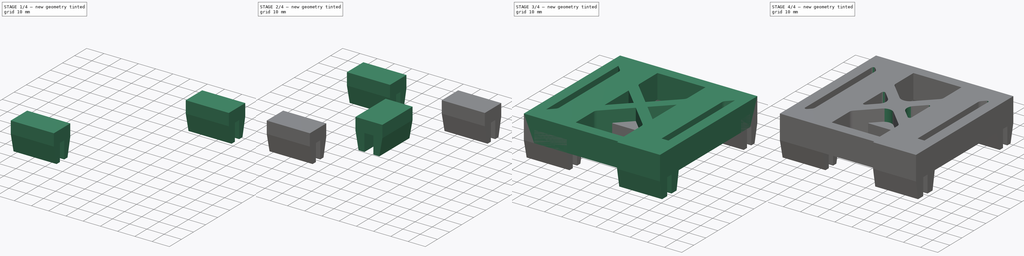
[diagram: build sequence overview — one tinted view per stage of 4, left to right]
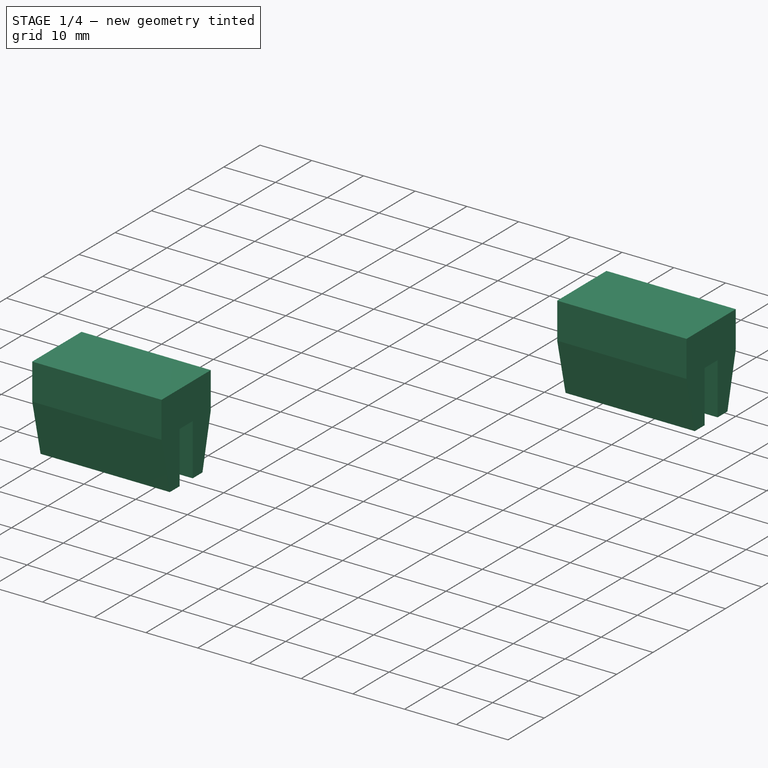
[diagram: stage 1 of 4 — iso view after this stage's code; geometry added in this stage tinted green]
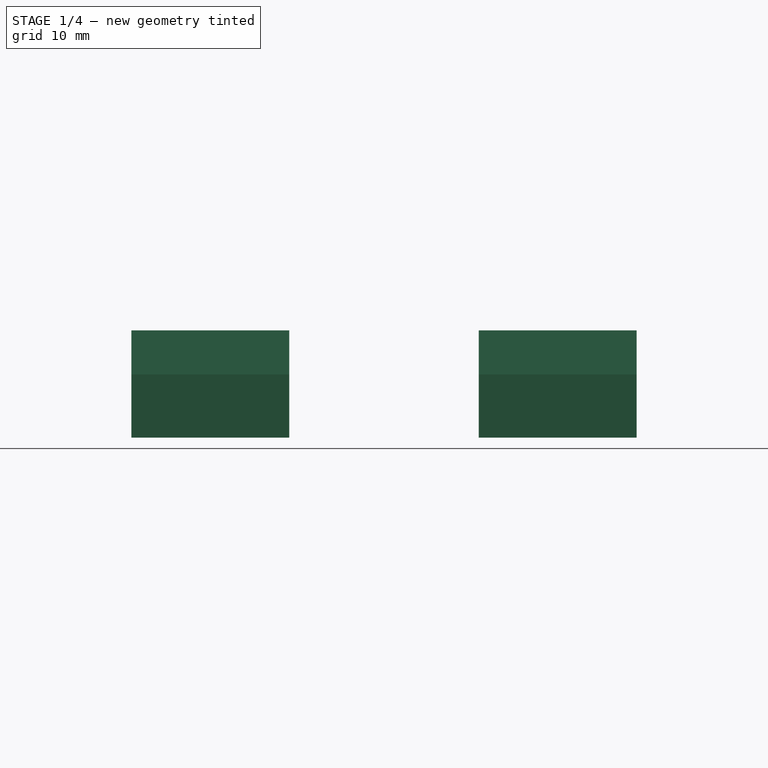
[diagram: stage 1 of 4 — front view after this stage's code; geometry added in this stage tinted green]
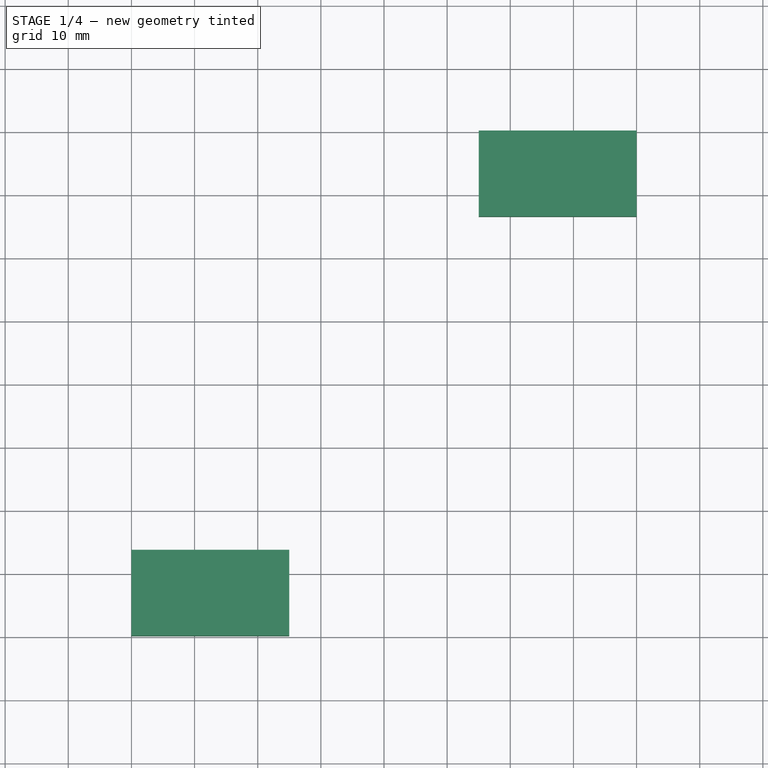
[diagram: stage 1 of 4 — top view after this stage's code; geometry added in this stage tinted green]
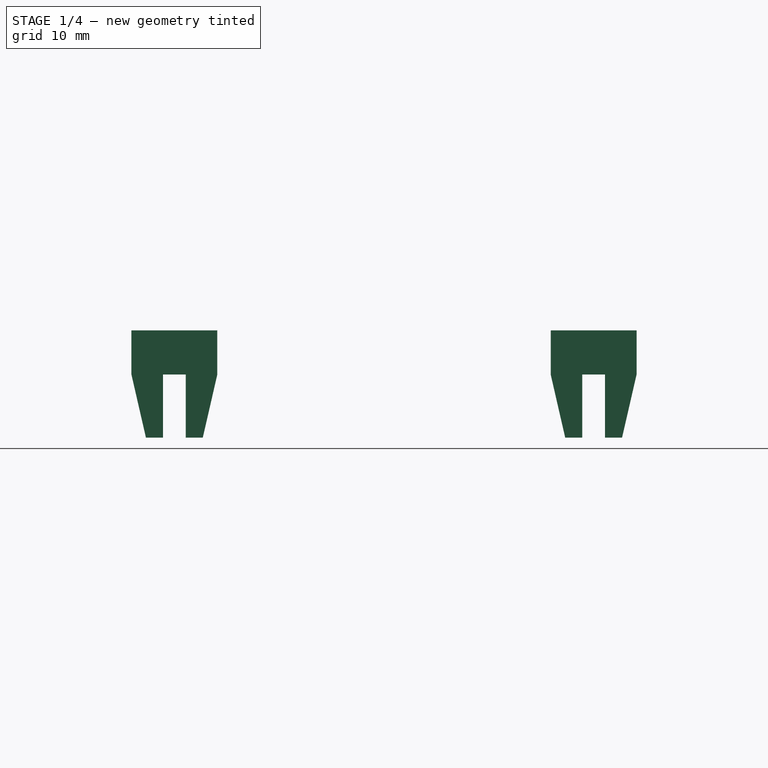
[diagram: stage 1 of 4 — right view after this stage's code; geometry added in this stage tinted green]
FCSTD DOCUMENT  (FreeCAD 0.20R0.20)
Label: 019
License: All rights reserved
LicenseURL: http://en.wikipedia.org/wiki/All_rights_reserved
objects: Sketcher::SketchObject×6, Part::Extrusion×6, Part::Fillet×3
note: 15 computed .brp shape members not serialized (recipe doc carries the construction recipe); baked Part::Feature solids carry a one-line shape summary decoded from their .brp

FEATURE [Sketcher::SketchObject] Sketch006
  FullyConstrained = true
  Placement = pos=(0,0,0) rot=(1,0,0;1.5708rad)
  sketch-geometry (10):
    g0: LineSegment StartX=5 StartY=-14 StartZ=0 EndX=8.6 EndY=-14 EndZ=0
    g1: LineSegment StartX=5 StartY=-14 StartZ=0 EndX=5 EndY=-24 EndZ=0
    g2: LineSegment StartX=5 StartY=-24 StartZ=0 EndX=2.3 EndY=-24 EndZ=0
    g3: LineSegment StartX=0 StartY=-14 StartZ=0 EndX=2.3 EndY=-24 EndZ=0
    g4: LineSegment StartX=8.6 StartY=-14 StartZ=0 EndX=8.6 EndY=-24 EndZ=0
    g5: LineSegment StartX=8.6 StartY=-24 StartZ=0 EndX=11.3 EndY=-24 EndZ=0
    g6: LineSegment StartX=13.6 StartY=-14 StartZ=0 EndX=11.3 EndY=-24 EndZ=0
    g7: LineSegment StartX=0 StartY=-14 StartZ=0 EndX=0 EndY=-7 EndZ=0
    g8: LineSegment StartX=0 StartY=-7 StartZ=0 EndX=13.6 EndY=-7 EndZ=0
    g9: LineSegment StartX=13.6 StartY=-7 StartZ=0 EndX=13.6 EndY=-14 EndZ=0
  constraints (28):
    c: Horizontal(g0)
    c: Block(g0)
    c: Distance(g0) = 3.6
    c: Coincident(g1,g0)
    c: Vertical(g1)
    c: Distance(g1) = 10
    c: Coincident(g2,g1)
    c: Horizontal(g2)
    c: Distance(g2) = 2.7
    c: Coincident(g3,g2)
    c: Coincident(g4,g0)
    c: Vertical(g4)
    c: Distance(g4) = 10
    c: Coincident(g5,g4)
    c: Horizontal(g5)
    c: Distance(g5) = 2.7
    c: Coincident(g6,g5)
    c: Block(g3)
    c: Coincident(g7,g3)
    c: Vertical(g7)
    c: Distance(g7) = 7
    c: Coincident(g8,g7)
    c: Horizontal(g8)
    c: Distance(g8) = 13.6
    c: Block(g6)
    c: Coincident(g9,g8)
    c: Coincident(g9,g6)
    c: Vertical(g9)
FEATURE [Part::Extrusion] Extrude006  label="hullBrace005"
  Base = -> Sketch006
  Dir = (0,-1,2e-16)
  DirMode = 2
  FaceMakerClass = Part::FaceMakerBullseye
  LengthFwd = 25
  LengthRev = 0
  Placement = pos=(55,66.4,14) rot=(0,0,1;1.5708rad)
  Solid = true
  Symmetric = false
FEATURE [Sketcher::SketchObject] Sketch007
  FullyConstrained = true
  Placement = pos=(0,0,0) rot=(1,0,0;1.5708rad)
  sketch-geometry (10):
    g0: LineSegment StartX=5 StartY=-14 StartZ=0 EndX=8.6 EndY=-14 EndZ=0
    g1: LineSegment StartX=5 StartY=-14 StartZ=0 EndX=5 EndY=-24 EndZ=0
    g2: LineSegment StartX=5 StartY=-24 StartZ=0 EndX=2.3 EndY=-24 EndZ=0
    g3: LineSegment StartX=0 StartY=-14 StartZ=0 EndX=2.3 EndY=-24 EndZ=0
    g4: LineSegment StartX=8.6 StartY=-14 StartZ=0 EndX=8.6 EndY=-24 EndZ=0
    g5: LineSegment StartX=8.6 StartY=-24 StartZ=0 EndX=11.3 EndY=-24 EndZ=0
    g6: LineSegment StartX=13.6 StartY=-14 StartZ=0 EndX=11.3 EndY=-24 EndZ=0
    g7: LineSegment StartX=0 StartY=-14 StartZ=0 EndX=0 EndY=-7 EndZ=0
    g8: LineSegment StartX=0 StartY=-7 StartZ=0 EndX=13.6 EndY=-7 EndZ=0
    g9: LineSegment StartX=13.6 StartY=-7 StartZ=0 EndX=13.6 EndY=-14 EndZ=0
  constraints (28):
    c: Horizontal(g0)
    c: Block(g0)
    c: Distance(g0) = 3.6
    c: Coincident(g1,g0)
    c: Vertical(g1)
    c: Distance(g1) = 10
    c: Coincident(g2,g1)
    c: Horizontal(g2)
    c: Distance(g2) = 2.7
    c: Coincident(g3,g2)
    c: Coincident(g4,g0)
    c: Vertical(g4)
    c: Distance(g4) = 10
    c: Coincident(g5,g4)
    c: Horizontal(g5)
    c: Distance(g5) = 2.7
    c: Coincident(g6,g5)
    c: Block(g3)
    c: Coincident(g7,g3)
    c: Vertical(g7)
    c: Distance(g7) = 7
    c: Coincident(g8,g7)
    c: Horizontal(g8)
    c: Distance(g8) = 13.6
    c: Block(g6)
    c: Coincident(g9,g8)
    c: Coincident(g9,g6)
    c: Vertical(g9)
FEATURE [Part::Extrusion] Extrude007  label="hullBrace006"
  Base = -> Sketch007
  Dir = (0,-1,2e-16)
  DirMode = 2
  FaceMakerClass = Part::FaceMakerBullseye
  LengthFwd = 25
  LengthRev = 0
  Placement = pos=(0,0,14) rot=(0,0,1;1.5708rad)
  Solid = true
  Symmetric = false
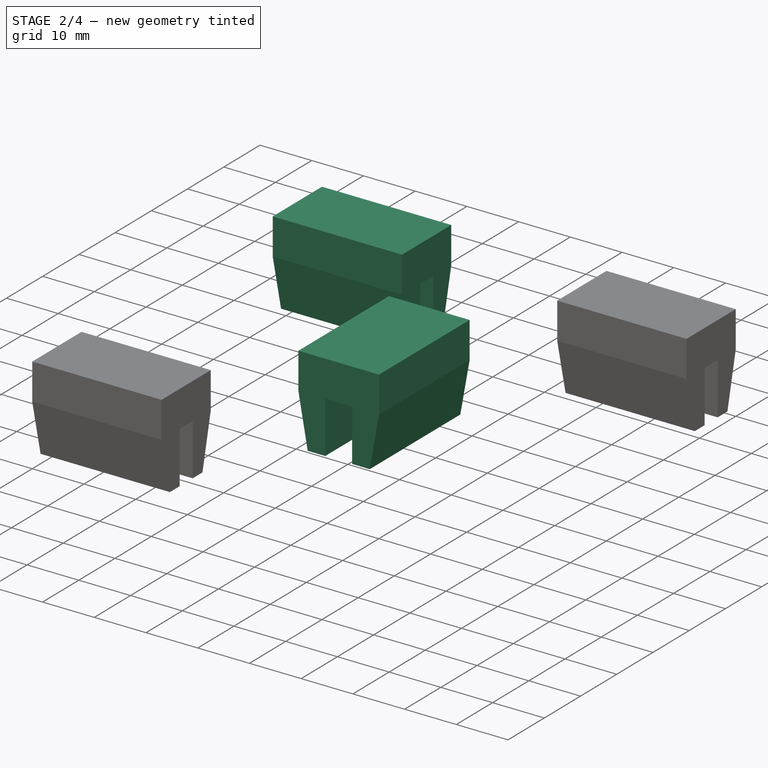
[diagram: stage 2 of 4 — iso view after this stage's code; geometry added in this stage tinted green]
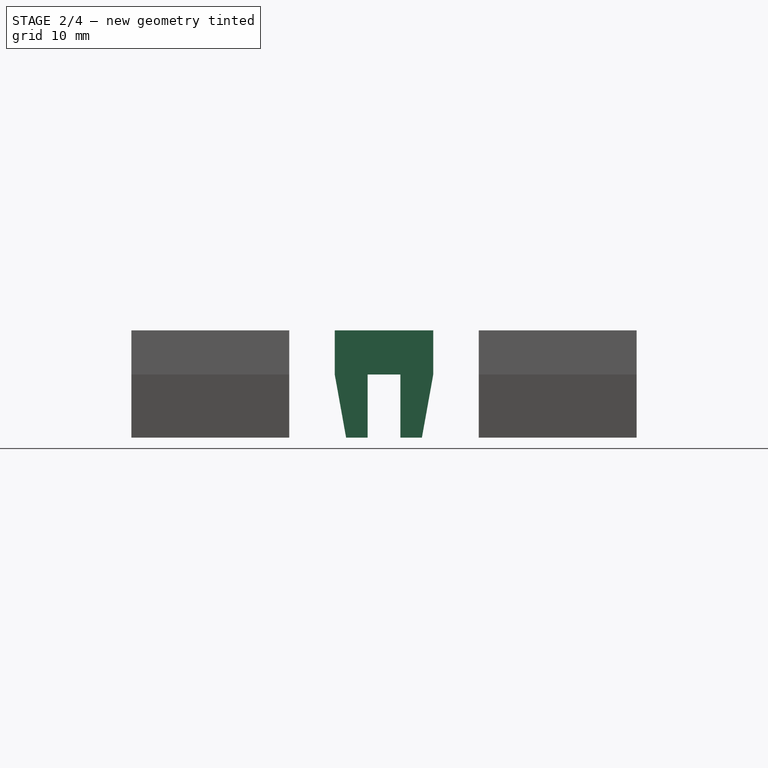
[diagram: stage 2 of 4 — front view after this stage's code; geometry added in this stage tinted green]
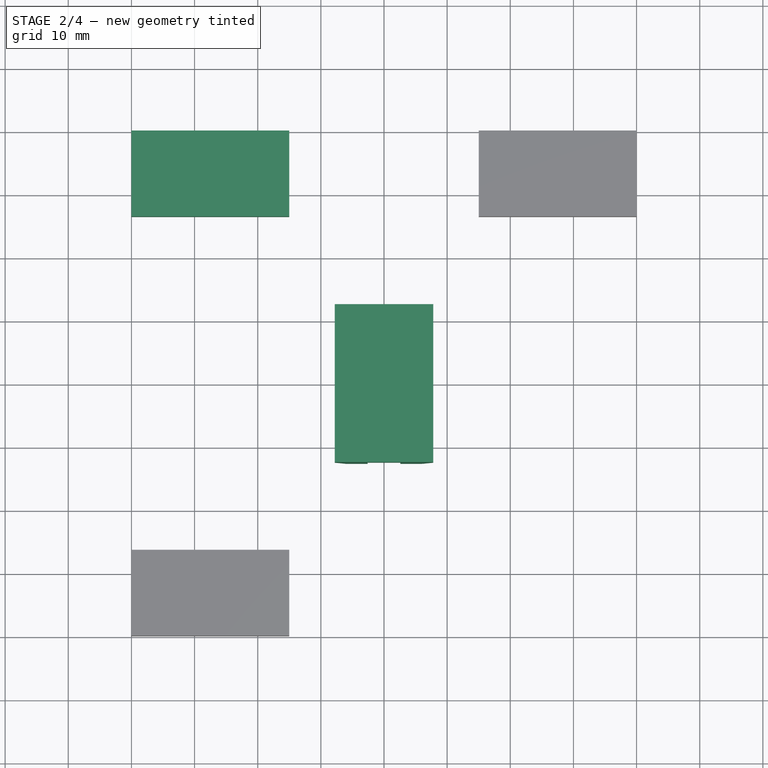
[diagram: stage 2 of 4 — top view after this stage's code; geometry added in this stage tinted green]
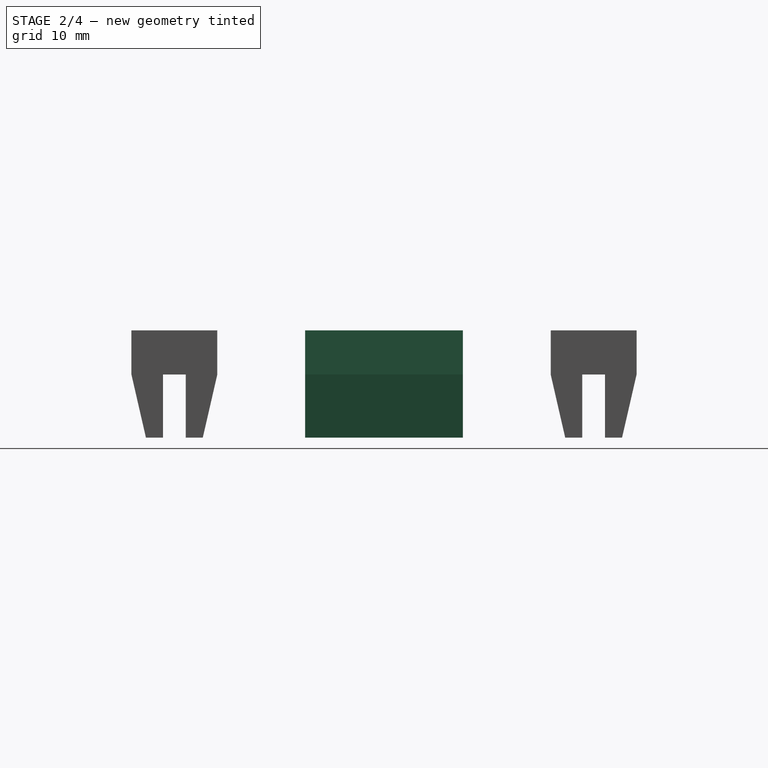
[diagram: stage 2 of 4 — right view after this stage's code; geometry added in this stage tinted green]
FEATURE [Sketcher::SketchObject] Sketch003
  FullyConstrained = true
  Placement = pos=(0,0,0) rot=(1,0,0;1.5708rad)
  sketch-geometry (10):
    g0: LineSegment StartX=5 StartY=-14 StartZ=0 EndX=8.6 EndY=-14 EndZ=0
    g1: LineSegment StartX=5 StartY=-14 StartZ=0 EndX=5 EndY=-24 EndZ=0
    g2: LineSegment StartX=5 StartY=-24 StartZ=0 EndX=2.3 EndY=-24 EndZ=0
    g3: LineSegment StartX=0 StartY=-14 StartZ=0 EndX=2.3 EndY=-24 EndZ=0
    g4: LineSegment StartX=8.6 StartY=-14 StartZ=0 EndX=8.6 EndY=-24 EndZ=0
    g5: LineSegment StartX=8.6 StartY=-24 StartZ=0 EndX=11.3 EndY=-24 EndZ=0
    g6: LineSegment StartX=13.6 StartY=-14 StartZ=0 EndX=11.3 EndY=-24 EndZ=0
    g7: LineSegment StartX=0 StartY=-14 StartZ=0 EndX=0 EndY=-7 EndZ=0
    g8: LineSegment StartX=0 StartY=-7 StartZ=0 EndX=13.6 EndY=-7 EndZ=0
    g9: LineSegment StartX=13.6 StartY=-7 StartZ=0 EndX=13.6 EndY=-14 EndZ=0
  constraints (28):
    c: Horizontal(g0)
    c: Block(g0)
    c: Distance(g0) = 3.6
    c: Coincident(g1,g0)
    c: Vertical(g1)
    c: Distance(g1) = 10
    c: Coincident(g2,g1)
    c: Horizontal(g2)
    c: Distance(g2) = 2.7
    c: Coincident(g3,g2)
    c: Coincident(g4,g0)
    c: Vertical(g4)
    c: Distance(g4) = 10
    c: Coincident(g5,g4)
    c: Horizontal(g5)
    c: Distance(g5) = 2.7
    c: Coincident(g6,g5)
    c: Block(g3)
    c: Coincident(g7,g3)
    c: Vertical(g7)
    c: Distance(g7) = 7
    c: Coincident(g8,g7)
    c: Horizontal(g8)
    c: Distance(g8) = 13.6
    c: Block(g6)
    c: Coincident(g9,g8)
    c: Coincident(g9,g6)
    c: Vertical(g9)
FEATURE [Part::Extrusion] Extrude003  label="hullBrace002"
  Base = -> Sketch003
  Dir = (0,-1,2e-16)
  DirMode = 2
  FaceMakerClass = Part::FaceMakerBullseye
  LengthFwd = 25
  LengthRev = 0
  Placement = pos=(0,66.4,14) rot=(0,0,1;1.5708rad)
  Solid = true
  Symmetric = false
FEATURE [Sketcher::SketchObject] Sketch005
  FullyConstrained = true
  Placement = pos=(0,0,0) rot=(1,0,0;1.5708rad)
  sketch-geometry (10):
    g0: LineSegment StartX=0 StartY=-7 StartZ=0 EndX=0 EndY=-14 EndZ=0
    g1: LineSegment StartX=5.2 StartY=-14 StartZ=0 EndX=10.4 EndY=-14 EndZ=0
    g2: LineSegment StartX=10.4 StartY=-14 StartZ=0 EndX=10.4 EndY=-24 EndZ=0
    g3: LineSegment StartX=5.2 StartY=-14 StartZ=0 EndX=5.2 EndY=-24 EndZ=0
    g4: LineSegment StartX=10.4 StartY=-24 StartZ=0 EndX=13.8 EndY=-24 EndZ=0
    g5: LineSegment StartX=5.2 StartY=-24 StartZ=0 EndX=1.8 EndY=-24 EndZ=0
    g6: LineSegment StartX=1.8 StartY=-24 StartZ=0 EndX=0 EndY=-14 EndZ=0
    g7: LineSegment StartX=13.8 StartY=-24 StartZ=0 EndX=15.6 EndY=-14 EndZ=0
    g8: LineSegment StartX=0 StartY=-7 StartZ=0 EndX=15.6 EndY=-7 EndZ=0
    g9: LineSegment StartX=15.6 StartY=-14 StartZ=0 EndX=15.6 EndY=-7 EndZ=0
  constraints (26):
    c: Vertical(g0)
    c: Distance(g0) = 7
    c: Horizontal(g1)
    c: Block(g1)
    c: Coincident(g2,g1)
    c: Vertical(g2)
    c: Coincident(g3,g1)
    c: Vertical(g3)
    c: Distance(g3) = 10
    c: Distance(g2) = 10
    c: Coincident(g4,g2)
    c: Horizontal(g4)
    c: Coincident(g5,g3)
    c: Horizontal(g5)
    c: Distance(g5) = 3.4
    c: Distance(g4) = 3.4
    c: Coincident(g6,g5)
    c: Coincident(g6,g0)
    c: Coincident(g7,g4)
    c: Block(g6)
    c: Block(g7)
    c: Coincident(g8,g0)
    c: Horizontal(g8)
    c: Coincident(g9,g7)
    c: Coincident(g9,g8)
    c: Vertical(g9)
FEATURE [Part::Extrusion] Extrude005  label="hullBrace004"
  Base = -> Sketch005
  Dir = (0,-1,2e-16)
  DirMode = 2
  FaceMakerClass = Part::FaceMakerBullseye
  LengthFwd = 25
  LengthRev = 0
  Placement = pos=(32.2,52.5,14) rot=(0,0,1;0rad)
  Solid = true
  Symmetric = false
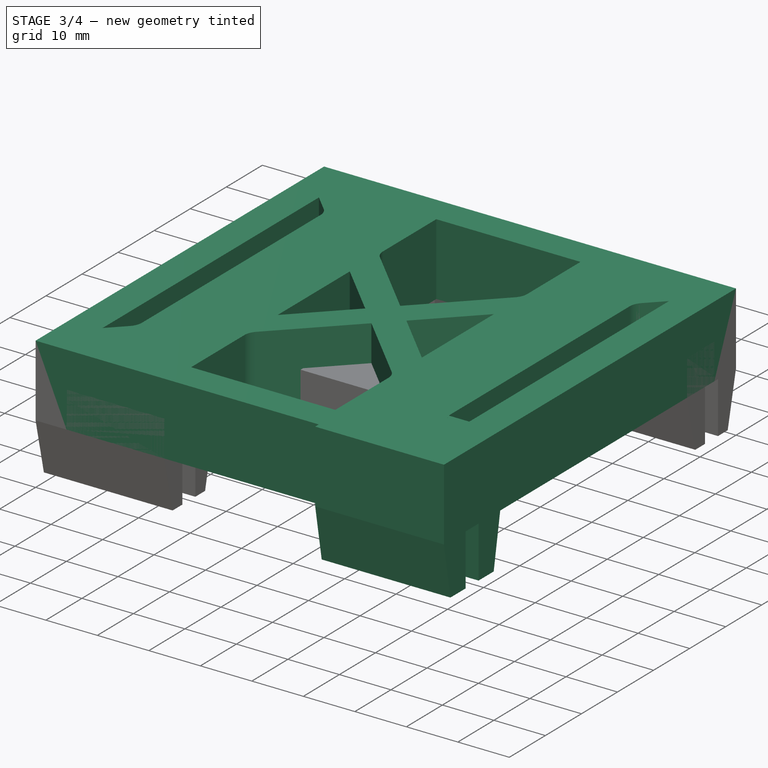
[diagram: stage 3 of 4 — iso view after this stage's code; geometry added in this stage tinted green]
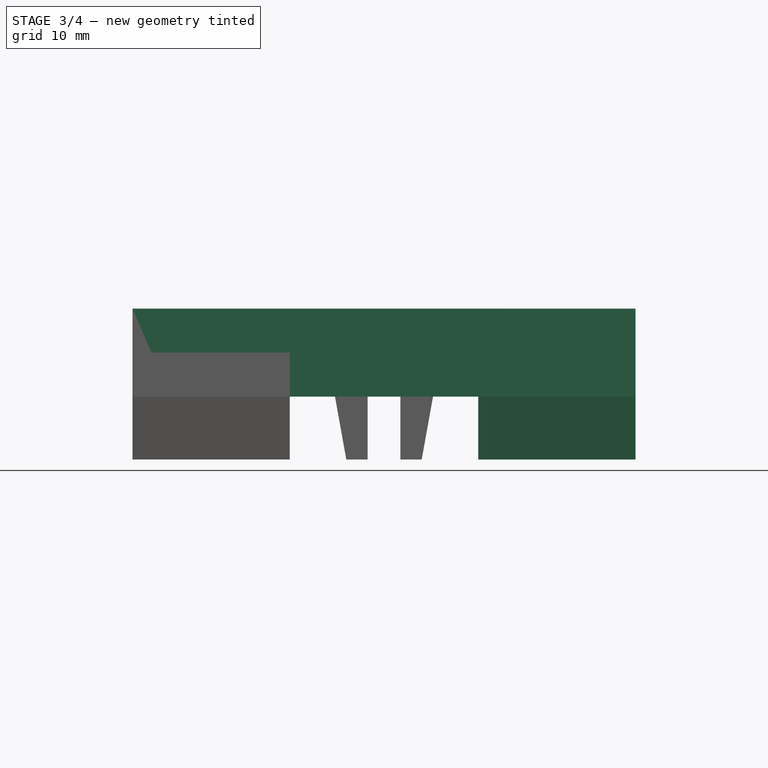
[diagram: stage 3 of 4 — front view after this stage's code; geometry added in this stage tinted green]
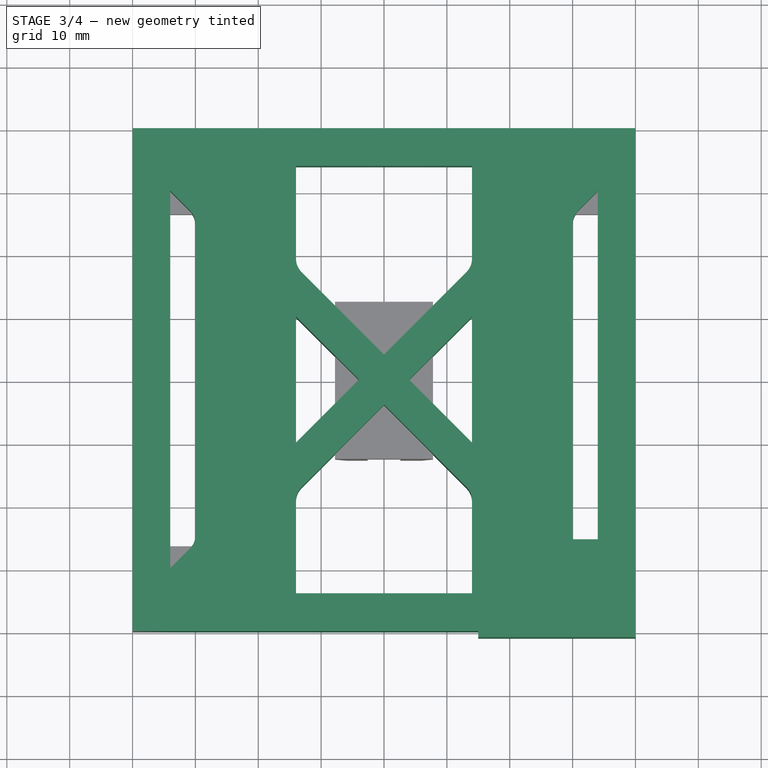
[diagram: stage 3 of 4 — top view after this stage's code; geometry added in this stage tinted green]
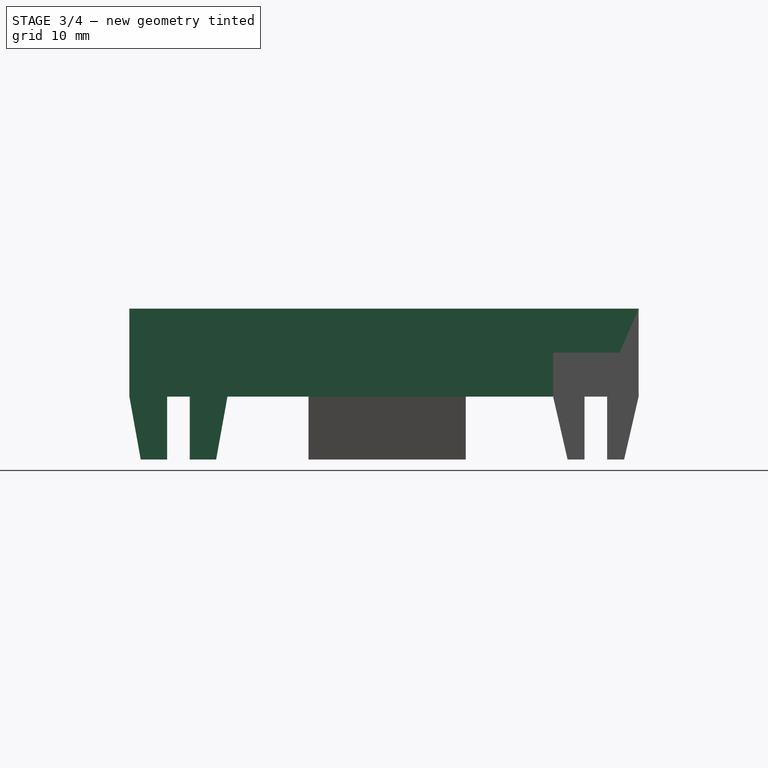
[diagram: stage 3 of 4 — right view after this stage's code; geometry added in this stage tinted green]
FEATURE [Sketcher::SketchObject] Sketch
  FullyConstrained = true
  sketch-geometry (36):
    g0: LineSegment StartX=80 StartY=80 StartZ=0 EndX=74 EndY=80 EndZ=0
    g1: LineSegment StartX=80 StartY=80 StartZ=0 EndX=80 EndY=74 EndZ=0
    g2: LineSegment StartX=0 StartY=80 StartZ=0 EndX=6 EndY=80 EndZ=0
    g3: LineSegment StartX=80 StartY=0 StartZ=0 EndX=80 EndY=6 EndZ=0
    g4: LineSegment StartX=0 StartY=0 StartZ=0 EndX=0 EndY=6 EndZ=0
    g5: LineSegment StartX=0 StartY=0 StartZ=0 EndX=6 EndY=0 EndZ=0
    g6: LineSegment StartX=80 StartY=0 StartZ=0 EndX=74 EndY=0 EndZ=0
    g7: LineSegment StartX=0 StartY=80 StartZ=0 EndX=0 EndY=74 EndZ=0
    g8: LineSegment StartX=54 StartY=58 StartZ=0 EndX=40 EndY=44 EndZ=0
    g9: LineSegment StartX=26 StartY=22 StartZ=0 EndX=40 EndY=36 EndZ=0
    g10: LineSegment StartX=26 StartY=58 StartZ=0 EndX=40 EndY=44 EndZ=0
    g11: LineSegment StartX=6 StartY=70 StartZ=0 EndX=10 EndY=66 EndZ=0
    g12: LineSegment StartX=40 StartY=36 StartZ=0 EndX=54 EndY=22 EndZ=0
    g13: LineSegment StartX=44 StartY=40 StartZ=0 EndX=54 EndY=30 EndZ=0
    g14: LineSegment StartX=36 StartY=40 StartZ=0 EndX=26 EndY=30 EndZ=0
    g15: LineSegment StartX=44 StartY=40 StartZ=0 EndX=54 EndY=50 EndZ=0
    g16: LineSegment StartX=74 StartY=10 StartZ=0 EndX=74 EndY=70 EndZ=0
    g17: LineSegment StartX=26 StartY=6 StartZ=0 EndX=54 EndY=6 EndZ=0
    g18: LineSegment StartX=6 StartY=70 StartZ=0 EndX=6 EndY=10 EndZ=0
    g19: LineSegment StartX=6 StartY=80 StartZ=0 EndX=74 EndY=80 EndZ=0
    g20: LineSegment StartX=80 StartY=74 StartZ=0 EndX=80 EndY=6 EndZ=0
    g21: LineSegment StartX=74 StartY=0 StartZ=0 EndX=6 EndY=0 EndZ=0
    g22: LineSegment StartX=0 StartY=6 StartZ=0 EndX=0 EndY=74 EndZ=0
    g23: LineSegment StartX=10 StartY=66 StartZ=0 EndX=10 EndY=14 EndZ=0
    g24: LineSegment StartX=70 StartY=66 StartZ=0 EndX=70 EndY=14 EndZ=0
    g25: LineSegment StartX=26 StartY=74 StartZ=0 EndX=26 EndY=58 EndZ=0
    g26: LineSegment StartX=54 StartY=74 StartZ=0 EndX=54 EndY=58 EndZ=0
    g27: LineSegment StartX=26 StartY=74 StartZ=0 EndX=54 EndY=74 EndZ=0
    g28: LineSegment StartX=26 StartY=50 StartZ=0 EndX=36 EndY=40 EndZ=0
    g29: LineSegment StartX=70 StartY=66 StartZ=0 EndX=74 EndY=70 EndZ=0
    g30: LineSegment StartX=70 StartY=14 StartZ=0 EndX=74 EndY=10 EndZ=0
    g31: LineSegment StartX=10 StartY=14 StartZ=0 EndX=6 EndY=10 EndZ=0
    g32: LineSegment StartX=54 StartY=22 StartZ=0 EndX=54 EndY=6 EndZ=0
    g33: LineSegment StartX=26 StartY=22 StartZ=0 EndX=26 EndY=6 EndZ=0
    g34: LineSegment StartX=54 StartY=50 StartZ=0 EndX=54 EndY=30 EndZ=0
    g35: LineSegment StartX=26 StartY=50 StartZ=0 EndX=26 EndY=30 EndZ=0
  constraints (83):
    c: Horizontal(g0)
    c: Distance(g0) = 6
    c: Block(g0)
    c: Coincident(g1,g0)
    c: Vertical(g1)
    c: Horizontal(g2)
    c: Vertical(g3)
    c: Distance(g1) = 6
    c: Distance(g2) = 6
    c: Distance(g3) = 6
    c: Block(g2)
    c: Block(g3)
    c: Coincident(g4,g-1)
    c: Vertical(g4)
    c: Coincident(g5,g4)
    c: Horizontal(g5)
    c: Coincident(g6,g3)
    c: Horizontal(g6)
    c: Coincident(g7,g2)
    c: Vertical(g7)
    c: Distance(g7) = 6
    c: Distance(g4) = 6
    c: Distance(g5) = 6
    c: Distance(g6) = 6
    c: Coincident(g8,g10)
    c: Coincident(g14,g28)
    c: Coincident(g9,g12)
    c: Coincident(g15,g13)
    c: Block(g15)
    c: Block(g8)
    c: Block(g14)
    c: Block(g12)
    c: Block(g13)
    c: Block(g9)
    c: Block(g11)
    c: Block(g10)
    c: Block(g16)
    c: Block(g17)
    c: Block(g18)
    c: Coincident(g29,g16)
    c: Coincident(g30,g16)
    c: Coincident(g31,g18)
    c: Coincident(g11,g18)
    c: Coincident(g19,g2)
    c: Coincident(g19,g0)
    c: Horizontal(g19)
    c: Coincident(g20,g1)
    c: Coincident(g20,g3)
    c: Vertical(g20)
    c: Coincident(g21,g6)
    c: Coincident(g21,g5)
    c: Horizontal(g21)
    c: Coincident(g22,g4)
    c: Coincident(g22,g7)
    c: Vertical(g22)
    c: Vertical(g23)
    c: Vertical(g24)
    c: Vertical(g25)
    c: Vertical(g26)
    c: Horizontal(g27)
    c: Block(g27)
    c: Block(g26)
    c: Block(g25)
    c: Block(g23)
    c: Block(g24)
    c: Block(g29)
    c: Block(g31)
    c: Block(g30)
    c: Block(g28)
    c: Coincident(g23,g11)
    c: Coincident(g24,g29)
    c: Coincident(g24,g30)
    c: Coincident(g17,g32)
    c: Coincident(g23,g31)
    c: Coincident(g17,g33)
    c: Coincident(g34,g13)
    c: Coincident(g32,g12)
    c: Coincident(g35,g14)
    c: Coincident(g33,g9)
    c: Coincident(g26,g8)
    c: Coincident(g34,g15)
    c: Coincident(g25,g10)
    c: Coincident(g35,g28)
FEATURE [Part::Extrusion] Extrude
  Base = -> Sketch
  Dir = (0,0,1)
  DirMode = 2
  FaceMakerClass = Part::FaceMakerBullseye
  LengthFwd = 14
  LengthRev = 0
  Solid = true
  Symmetric = false
FEATURE [Part::Fillet] Fillet  label="base"
  Base = -> Extrude
  Edges = 8 edges r=3: [Edge38,Edge41,Edge53,Edge56,Edge61,Edge65,Edge80,Edge86]
FEATURE [Sketcher::SketchObject] Sketch002
  FullyConstrained = true
  Placement = pos=(0,0,0) rot=(1,0,0;1.5708rad)
  sketch-geometry (10):
    g0: LineSegment StartX=0 StartY=0 StartZ=0 EndX=15.6 EndY=0 EndZ=0
    g1: LineSegment StartX=0 StartY=0 StartZ=0 EndX=0 EndY=-14 EndZ=0
    g2: LineSegment StartX=15.6 StartY=0 StartZ=0 EndX=15.6 EndY=-14 EndZ=0
    g3: LineSegment StartX=6 StartY=-14 StartZ=0 EndX=9.6 EndY=-14 EndZ=0
    g4: LineSegment StartX=9.6 StartY=-14 StartZ=0 EndX=9.6 EndY=-24 EndZ=0
    g5: LineSegment StartX=6 StartY=-14 StartZ=0 EndX=6 EndY=-24 EndZ=0
    g6: LineSegment StartX=9.6 StartY=-24 StartZ=0 EndX=13.8 EndY=-24 EndZ=0
    g7: LineSegment StartX=6 StartY=-24 StartZ=0 EndX=1.8 EndY=-24 EndZ=0
    g8: LineSegment StartX=1.8 StartY=-24 StartZ=0 EndX=0 EndY=-14 EndZ=0
    g9: LineSegment StartX=13.8 StartY=-24 StartZ=0 EndX=15.6 EndY=-14 EndZ=0
  constraints (27):
    c: Coincident(g0,g-1)
    c: Horizontal(g0)
    c: Distance(g0) = 15.6
    c: Coincident(g1,g0)
    c: Vertical(g1)
    c: Distance(g1) = 14
    c: Coincident(g2,g0)
    c: Vertical(g2)
    c: Block(g2)
    c: Horizontal(g3)
    c: Block(g3)
    c: Coincident(g4,g3)
    c: Vertical(g4)
    c: Coincident(g5,g3)
    c: Vertical(g5)
    c: Distance(g5) = 10
    c: Distance(g4) = 10
    c: Coincident(g6,g4)
    c: Horizontal(g6)
    c: Coincident(g7,g5)
    c: Horizontal(g7)
    c: Distance(g7) = 4.2
    c: Distance(g6) = 4.2
    c: Coincident(g8,g7)
    c: Coincident(g8,g1)
    c: Coincident(g9,g6)
    c: Coincident(g9,g2)
FEATURE [Part::Extrusion] Extrude002  label="hullBrace001"
  Base = -> Sketch002
  Dir = (0,-1,-3e-16)
  DirMode = 2
  FaceMakerClass = Part::FaceMakerBullseye
  LengthFwd = 25
  LengthRev = 0
  Placement = pos=(55,-1,14) rot=(0,0,1;1.5708rad)
  Solid = true
  Symmetric = false
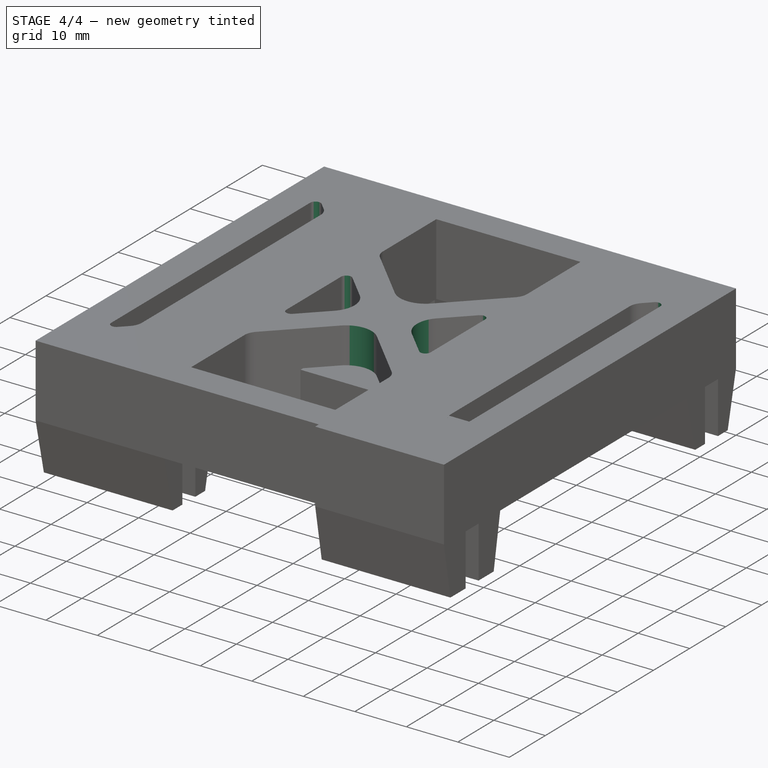
[diagram: stage 4 of 4 — iso view after this stage's code; geometry added in this stage tinted green]
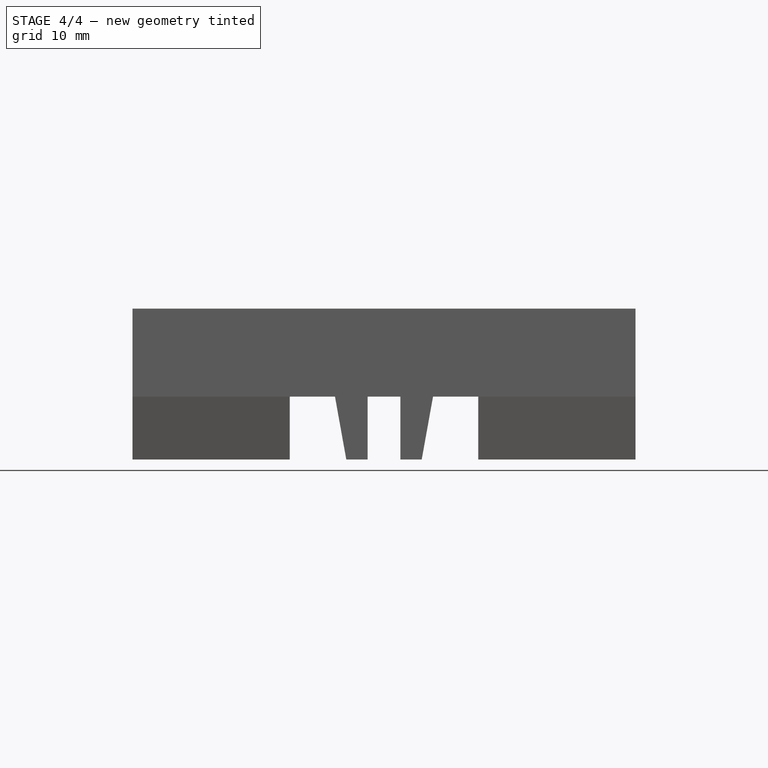
[diagram: stage 4 of 4 — front view after this stage's code; geometry added in this stage tinted green]
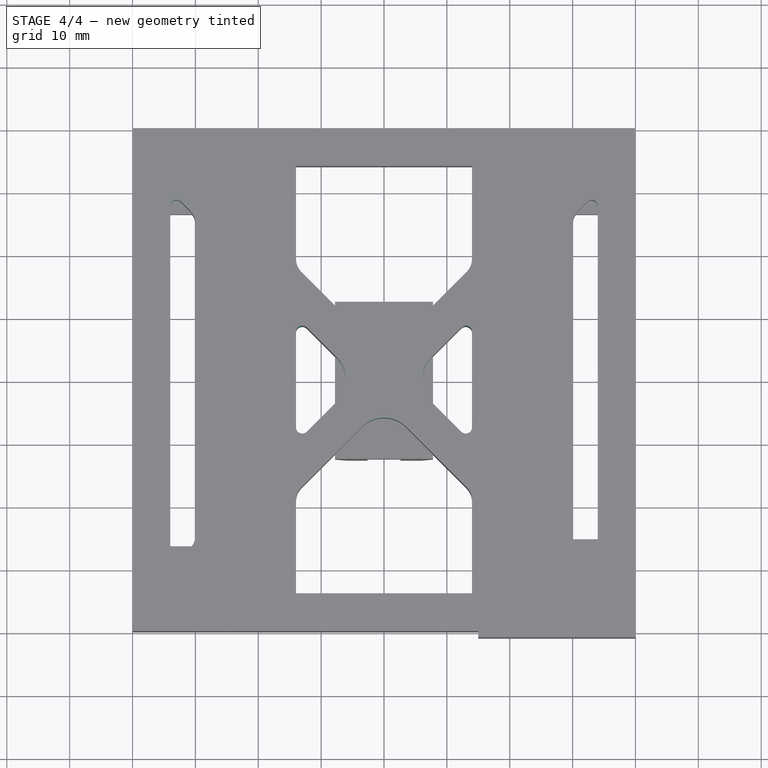
[diagram: stage 4 of 4 — top view after this stage's code; geometry added in this stage tinted green]
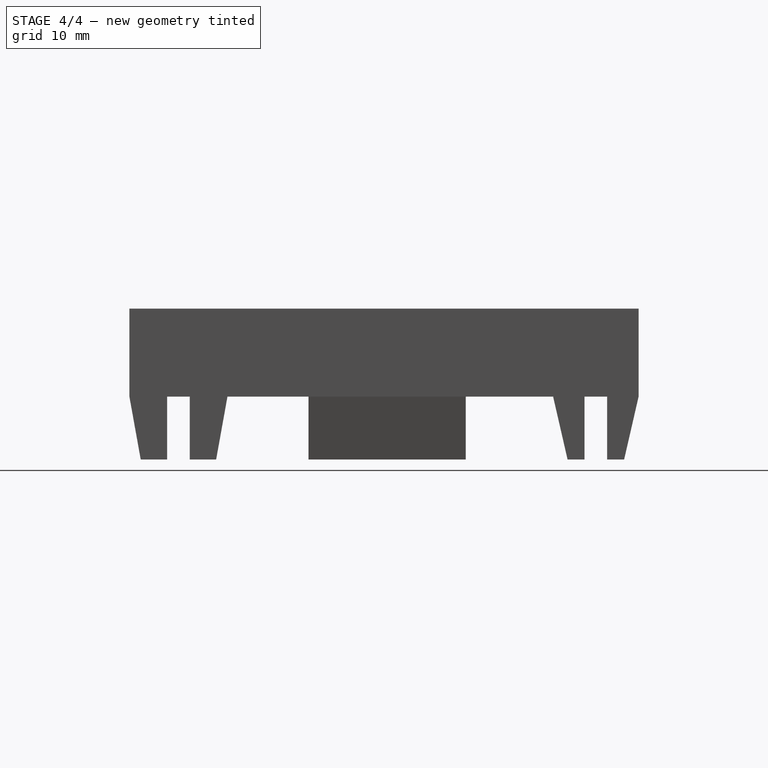
[diagram: stage 4 of 4 — right view after this stage's code; geometry added in this stage tinted green]
FEATURE [Part::Fillet] Fillet001  label="base001"
  Base = -> Fillet
  Edges = 4 edges r=5: [Edge108,Edge110,Edge120,Edge130]
FEATURE [Part::Fillet] Fillet002  label="base002"
  Base = -> Fillet001
  Edges = 8 edges r=1: [Edge51,Edge55,Edge57,Edge67,Edge95,Edge96,Edge106,Edge111]
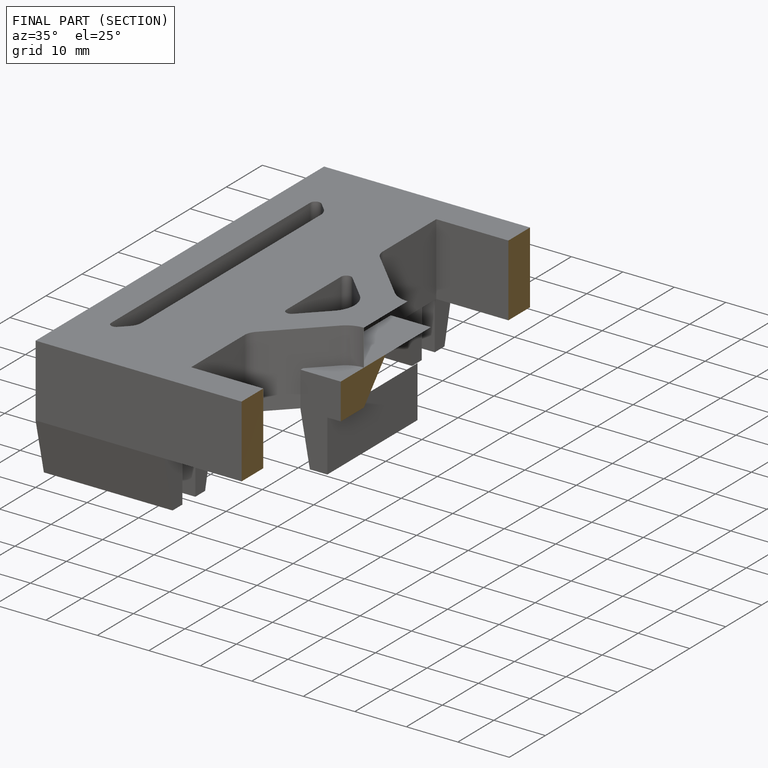
[diagram: finished part — half-section view (interior)]
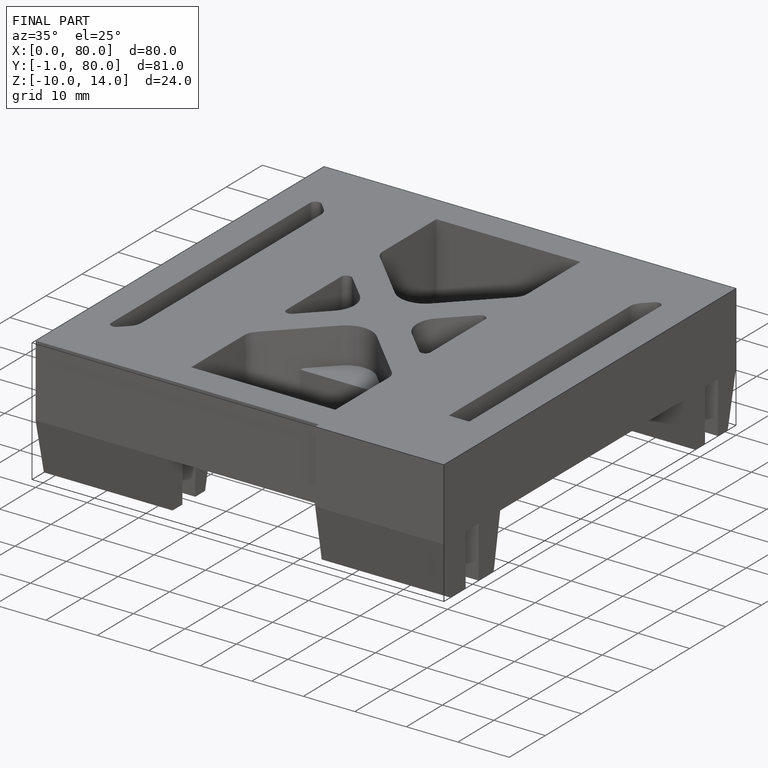
[diagram: finished part — iso view with bounding-box wireframe]
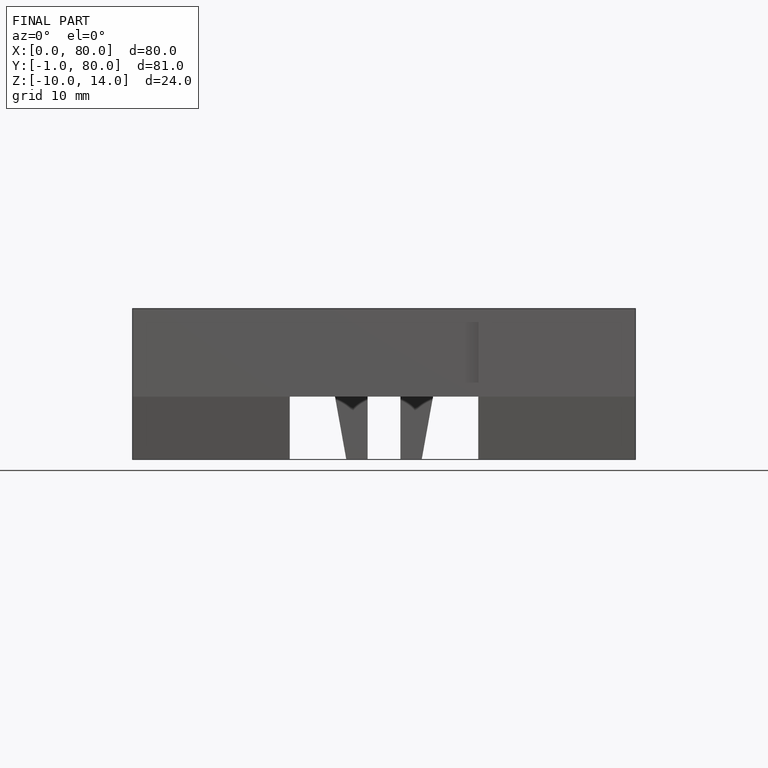
[diagram: finished part — front view with bounding-box wireframe]
